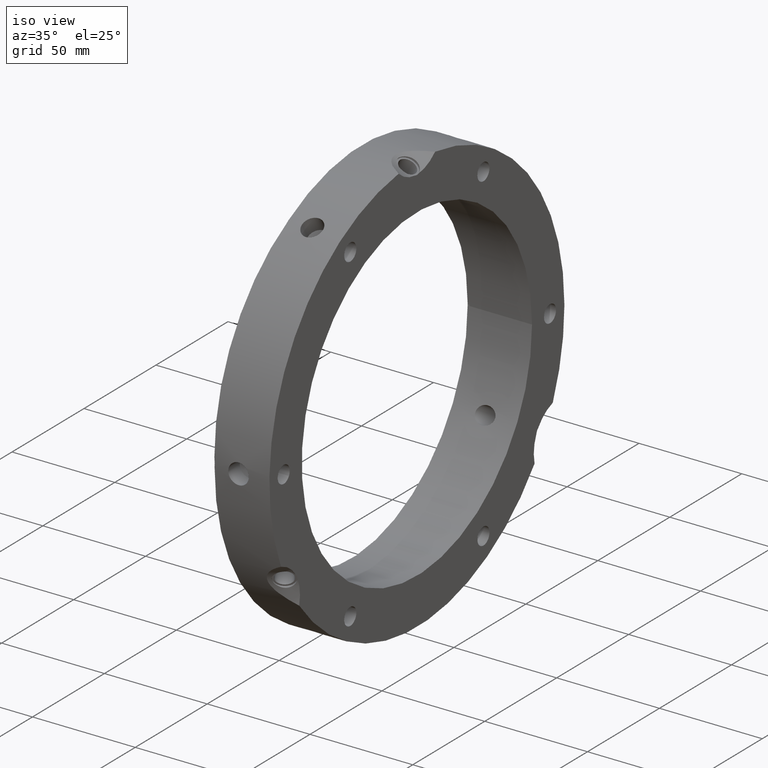
[diagram: clean part render]
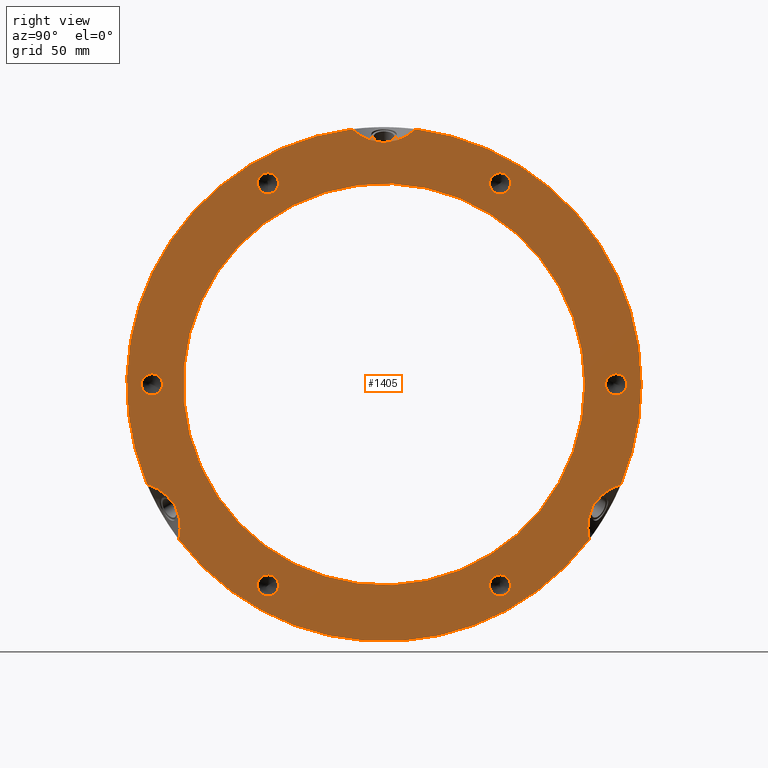
[diagram: tour spotlight — one face highlighted and labeled with its STEP entity id]
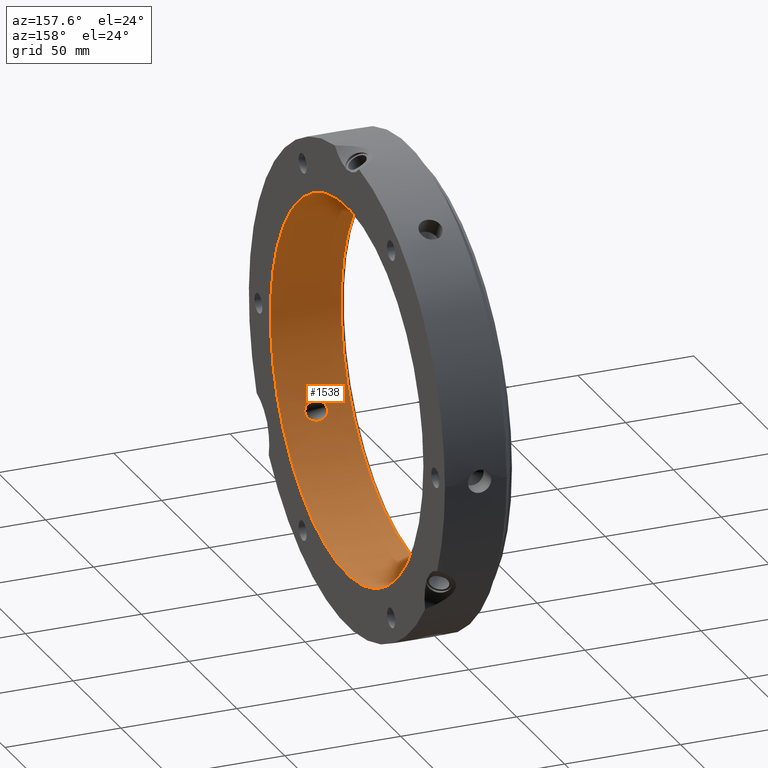
[diagram: tour spotlight — one face highlighted and labeled with its STEP entity id]
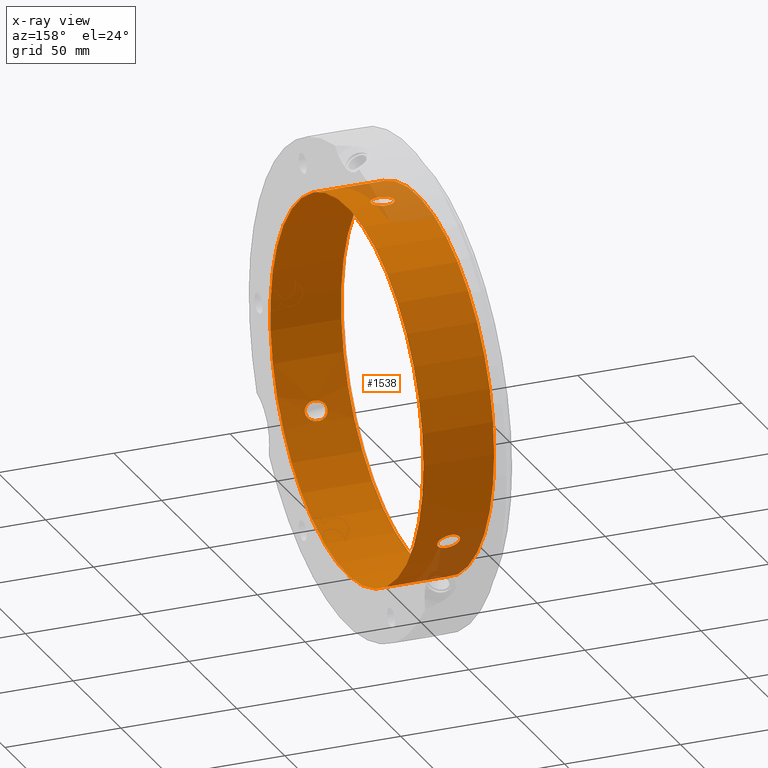
[diagram: x-ray of the same camera — body ghosted, this tour face saturated]
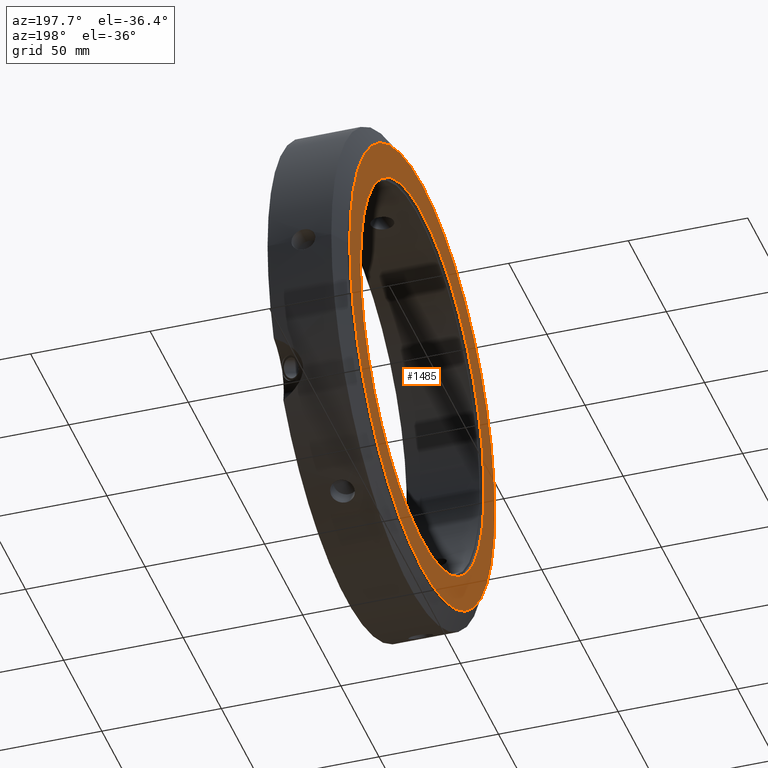
[diagram: tour spotlight — one face highlighted and labeled with its STEP entity id]
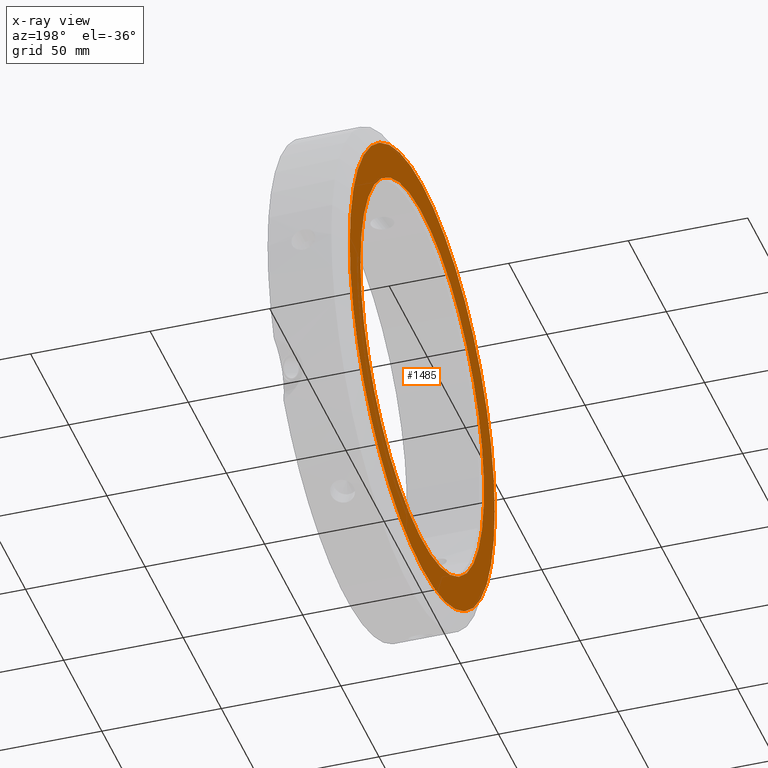
[diagram: x-ray of the same camera — body ghosted, this tour face saturated]
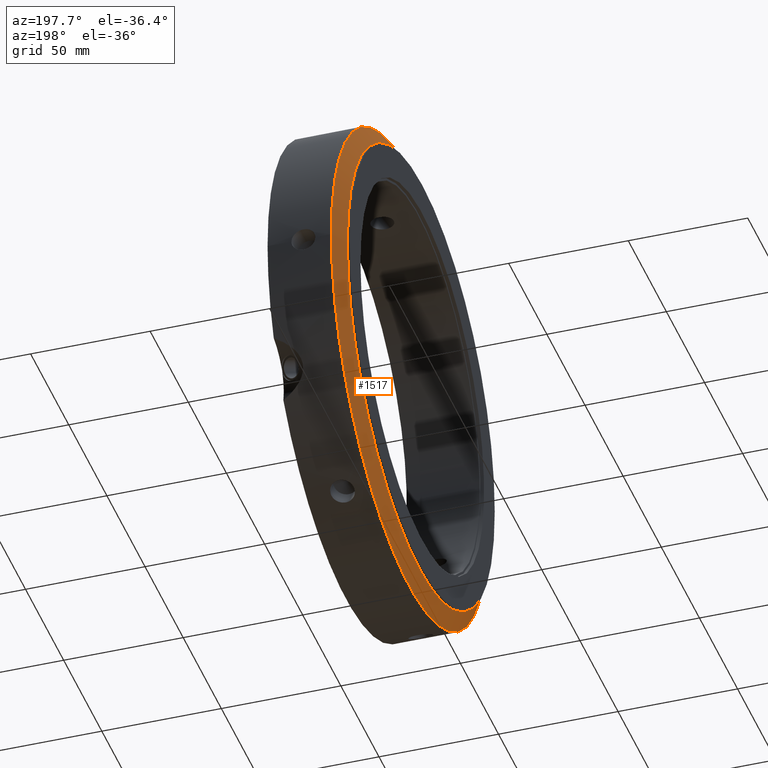
[diagram: tour spotlight — one face highlighted and labeled with its STEP entity id]
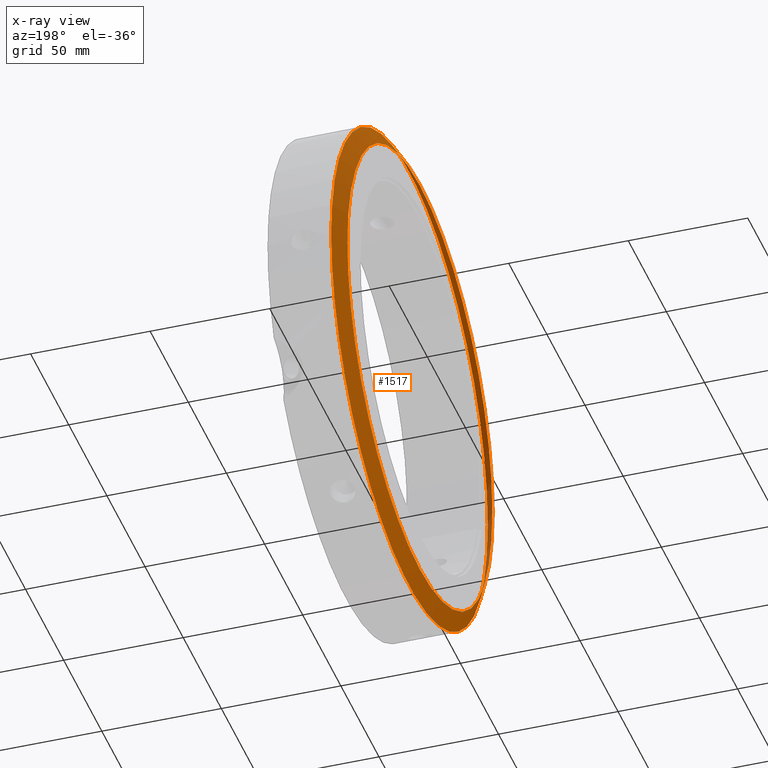
[diagram: x-ray of the same camera — body ghosted, this tour face saturated]
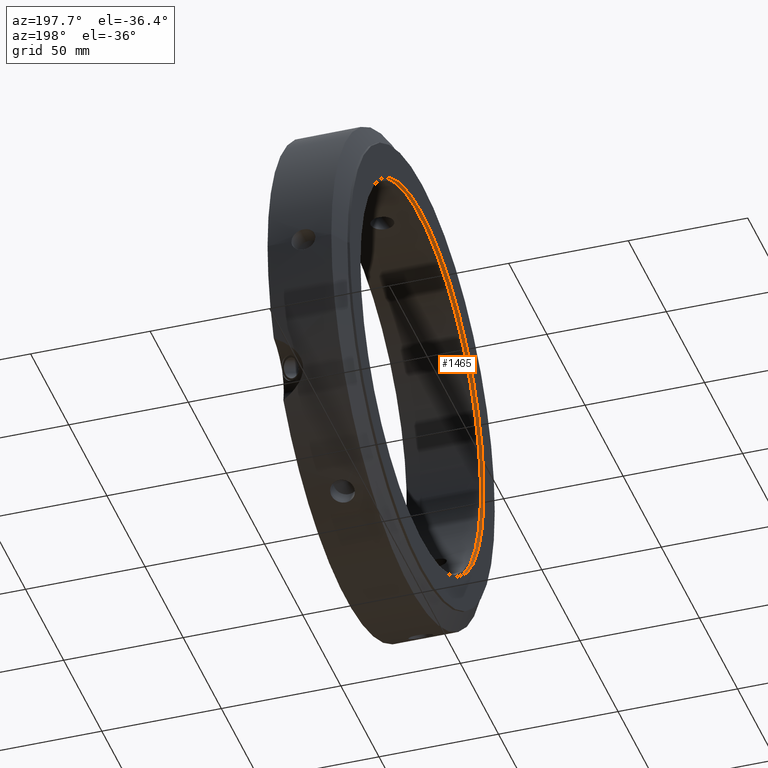
[diagram: tour spotlight — one face highlighted and labeled with its STEP entity id]
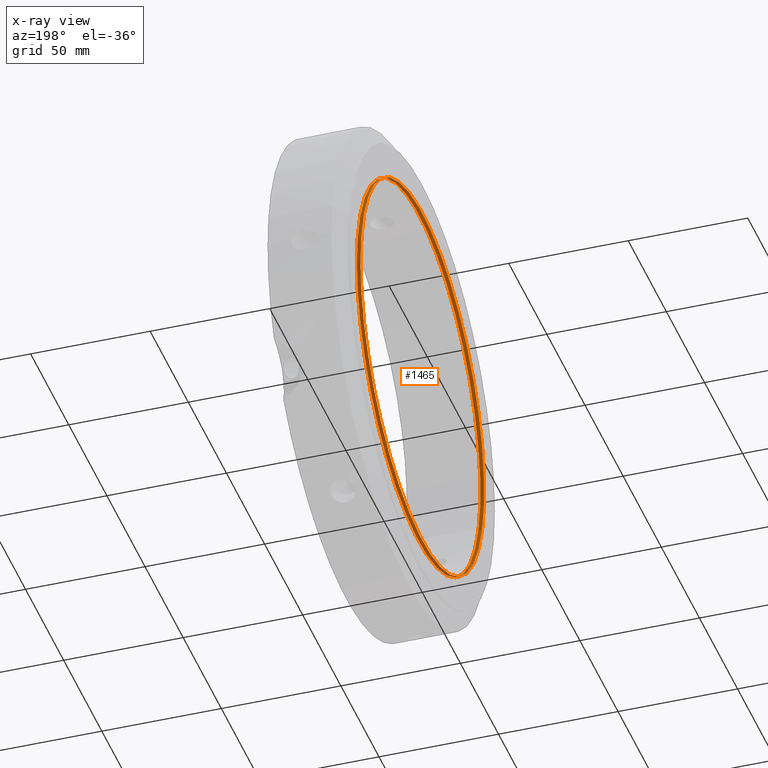
[diagram: x-ray of the same camera — body ghosted, this tour face saturated]
A machine part: a face-by-face anatomy tour. The part has 44 B-rep faces; the first image is the clean iso view, then the 5 largest visible faces are spotlighted one at a time (largest first), each with its STEP entity span.

Face 1 — right view, entity #1405. In plain terms, the highlighted planar face has unit normal (1, 0, 0).
Definition (entity closure, byte-faithful):
#165=CARTESIAN_POINT('',(31.999999999999986,42.612693304105385,78.007349850060578));
#166=VERTEX_POINT('',#165);
#167=CARTESIAN_POINT('',(31.999999999999986,46.250000000000028,80.107349850060544));
#168=DIRECTION('',(-1.0,0.0,0.0));
#169=DIRECTION('',(0.0,-0.866025403784439,-0.499999999999999));
#170=AXIS2_PLACEMENT_3D('',#167,#168,#169);
#171=CIRCLE('',#170,4.2);
#172=EDGE_CURVE('',#166,#166,#171,.T.);
#277=CARTESIAN_POINT('',(31.999999999999986,88.862693304105363,2.100000000000009));
#278=VERTEX_POINT('',#277);
#279=CARTESIAN_POINT('',(31.999999999999986,92.5,0.0));
#280=DIRECTION('',(-1.0,0.0,0.0));
#281=DIRECTION('',(0.0,-0.866025403784438,0.5));
#282=AXIS2_PLACEMENT_3D('',#279,#280,#281);
#283=CIRCLE('',#282,4.200000000000001);
#284=EDGE_CURVE('',#278,#278,#283,.T.);
#389=CARTESIAN_POINT('',(31.999999999999986,46.250000000000036,-75.907349850060555));
#390=VERTEX_POINT('',#389);
#391=CARTESIAN_POINT('',(31.999999999999986,46.250000000000036,-80.107349850060558));
#392=DIRECTION('',(-1.0,0.0,0.0));
#393=DIRECTION('',(0.0,0.0,1.0));
#394=AXIS2_PLACEMENT_3D('',#391,#392,#393);
#395=CIRCLE('',#394,4.200000000000001);
#396=EDGE_CURVE('',#390,#390,#395,.T.);
#501=CARTESIAN_POINT('',(31.999999999999986,-42.612693304105321,-78.007349850060578));
#502=VERTEX_POINT('',#501);
#503=CARTESIAN_POINT('',(31.999999999999986,-46.249999999999972,-80.107349850060587));
#504=DIRECTION('',(-1.0,0.0,0.0));
#505=DIRECTION('',(0.0,0.866025403784439,0.5));
#506=AXIS2_PLACEMENT_3D('',#503,#504,#505);
#507=CIRCLE('',#506,4.199999999999999);
#508=EDGE_CURVE('',#502,#502,#507,.T.);
#613=CARTESIAN_POINT('',(31.999999999999986,-88.862693304105349,-2.100000000000044));
#614=VERTEX_POINT('',#613);
#615=CARTESIAN_POINT('',(31.999999999999986,-92.5,-4.440892E-014));
#616=DIRECTION('',(-1.0,0.0,0.0));
#617=DIRECTION('',(0.0,0.866025403784439,-0.5));
#618=AXIS2_PLACEMENT_3D('',#615,#616,#617);
#619=CIRCLE('',#618,4.2);
#620=EDGE_CURVE('',#614,#614,#619,.T.);
#650=CARTESIAN_POINT('',(31.999999999999986,-46.250000000000043,75.907349850060541));
#651=VERTEX_POINT('',#650);
#652=CARTESIAN_POINT('',(31.999999999999986,-46.250000000000043,80.107349850060544));
#653=DIRECTION('',(-1.0,0.0,0.0));
#654=DIRECTION('',(0.0,0.0,-1.0));
#655=AXIS2_PLACEMENT_3D('',#652,#653,#654);
#656=CIRCLE('',#655,4.2);
#657=EDGE_CURVE('',#651,#651,#656,.T.);
#745=CARTESIAN_POINT('',(31.999999999961418,84.111952826831811,-47.374891842088829));
#746=VERTEX_POINT('',#745);
#747=CARTESIAN_POINT('',(31.999999999999979,94.41770309262445,-39.894201868354457));
#748=VERTEX_POINT('',#747);
#749=CARTESIAN_POINT('',(31.999999999999986,103.57145146519832,-59.797005383792587));
#750=DIRECTION('',(-1.0,0.0,0.0));
#751=DIRECTION('',(0.0,-0.866025403784438,0.5));
#752=AXIS2_PLACEMENT_3D('',#749,#750,#751);
#753=ELLIPSE('',#752,23.094010767585036,20.000000000000004);
#754=EDGE_CURVE('',#746,#748,#753,.T.);
#756=CARTESIAN_POINT('',(31.999999999961418,83.083836250204939,-49.155641988910375));
#757=VERTEX_POINT('',#756);
#796=CARTESIAN_POINT('',(31.999999999999986,81.758243828011729,-61.821028511012216));
#797=VERTEX_POINT('',#796);
#798=CARTESIAN_POINT('',(31.999999999999986,103.57145146519832,-59.797005383792587));
#799=DIRECTION('',(-1.0,0.0,0.0));
#800=DIRECTION('',(0.0,-0.866025403784438,0.5));
#801=AXIS2_PLACEMENT_3D('',#798,#799,#800);
#802=ELLIPSE('',#801,23.094010767585036,20.000000000000004);
#803=EDGE_CURVE('',#797,#757,#802,.T.);
#892=CARTESIAN_POINT('',(31.999999999999986,92.249999999999858,-53.260562332742978));
#893=DIRECTION('',(-1.0,0.0,0.0));
#894=DIRECTION('',(0.0,-0.866025403784438,0.5));
#895=AXIS2_PLACEMENT_3D('',#892,#893,#894);
#896=ELLIPSE('',#895,10.200000000000065,5.10000000000004);
#897=EDGE_CURVE('',#757,#746,#896,.T.);
#931=CARTESIAN_POINT('',(31.999999999961418,-83.083836250204968,-49.155641988910276));
#932=VERTEX_POINT('',#931);
#933=CARTESIAN_POINT('',(31.999999999999979,-81.758243828011729,-61.821028511012202));
#934=VERTEX_POINT('',#933);
#935=CARTESIAN_POINT('',(31.999999999999986,-103.57145146519835,-59.797005383792509));
#936=DIRECTION('',(-1.0,0.0,0.0));
#937=DIRECTION('',(0.0,0.866025403784439,0.5));
#938=AXIS2_PLACEMENT_3D('',#935,#936,#937);
#939=ELLIPSE('',#938,23.094010767585036,20.0);
#940=EDGE_CURVE('',#932,#934,#939,.T.);
#942=CARTESIAN_POINT('',(31.999999999961418,-84.111952826831839,-47.374891842088758));
#943=VERTEX_POINT('',#942);
#982=CARTESIAN_POINT('',(31.999999999999975,-94.417703092624507,-39.894201868354308));
#983=VERTEX_POINT('',#982);
#984=CARTESIAN_POINT('',(31.999999999999986,-103.57145146519835,-59.797005383792509));
#985=DIRECTION('',(-1.0,0.0,0.0));
#986=DIRECTION('',(0.0,0.866025403784439,0.5));
#987=AXIS2_PLACEMENT_3D('',#984,#985,#986);
#988=ELLIPSE('',#987,23.094010767585036,20.0);
#989=EDGE_CURVE('',#983,#943,#988,.T.);
#1078=CARTESIAN_POINT('',(31.999999999999986,-92.249999999999915,-53.260562332742893));
#1079=DIRECTION('',(-1.0,0.0,0.0));
#1080=DIRECTION('',(0.0,0.866025403784439,0.5));
#1081=AXIS2_PLACEMENT_3D('',#1078,#1079,#1080);
#1082=ELLIPSE('',#1081,10.200000000000063,5.100000000000039);
#1083=EDGE_CURVE('',#943,#932,#1082,.T.);
#1153=CARTESIAN_POINT('',(31.999999999999979,0.0,0.0));
#1154=DIRECTION('',(1.0,0.0,0.0));
#1155=DIRECTION('',(0.0,1.0,0.0));
#1156=AXIS2_PLACEMENT_3D('',#1153,#1154,#1155);
#1157=CIRCLE('',#1156,102.5);
#1158=EDGE_CURVE('',#934,#797,#1157,.T.);
#1161=CARTESIAN_POINT('',(31.999999999999975,-12.659459264612767,101.71523037936652));
#1162=VERTEX_POINT('',#1161);
#1163=CARTESIAN_POINT('',(31.999999999999979,0.0,0.0));
#1164=DIRECTION('',(1.0,0.0,0.0));
#1165=DIRECTION('',(0.0,1.0,0.0));
#1166=AXIS2_PLACEMENT_3D('',#1163,#1164,#1165);
#1167=CIRCLE('',#1166,102.5);
#1168=EDGE_CURVE('',#1162,#983,#1167,.T.);
#1170=CARTESIAN_POINT('',(31.999999999999975,12.659459264612767,101.71523037936652));
#1171=VERTEX_POINT('',#1170);
#1197=CARTESIAN_POINT('',(31.999999999999979,0.0,0.0));
#1198=DIRECTION('',(1.0,0.0,0.0));
#1199=DIRECTION('',(0.0,1.0,0.0));
#1200=AXIS2_PLACEMENT_3D('',#1197,#1198,#1199);
#1201=CIRCLE('',#1200,102.5);
#1202=EDGE_CURVE('',#748,#1171,#1201,.T.);
#1270=CARTESIAN_POINT('',(31.999999999999979,-1.028116576121158,96.530533830924483));
#1271=VERTEX_POINT('',#1270);
#1272=CARTESIAN_POINT('',(31.999999999999979,1.028116576121158,96.530533830924483));
#1273=VERTEX_POINT('',#1272);
#1312=CARTESIAN_POINT('',(31.999999999999986,0.0,106.52112466548581));
#1313=DIRECTION('',(-1.0,0.0,0.0));
#1314=DIRECTION('',(0.0,0.0,-1.0));
#1315=AXIS2_PLACEMENT_3D('',#1312,#1313,#1314);
#1316=ELLIPSE('',#1315,10.200000000000065,5.10000000000004);
#1317=EDGE_CURVE('',#1273,#1271,#1316,.T.);
#1345=CARTESIAN_POINT('',(31.999999999999986,91.25,0.0));
#1346=DIRECTION('',(1.0,0.0,0.0));
#1347=DIRECTION('',(0.0,0.0,-1.0));
#1348=AXIS2_PLACEMENT_3D('',#1345,#1346,#1347);
#1349=PLANE('',#1348);
#1350=ORIENTED_EDGE('',*,*,#754,.T.);
#1351=ORIENTED_EDGE('',*,*,#1202,.T.);
#1352=CARTESIAN_POINT('',(31.999999999999986,0.0,119.59401076758505));
#1353=DIRECTION('',(-1.0,0.0,0.0));
#1354=DIRECTION('',(0.0,0.0,-1.0));
#1355=AXIS2_PLACEMENT_3D('',#1352,#1353,#1354);
#1356=ELLIPSE('',#1355,23.09401076758504,20.000000000000004);
#1357=EDGE_CURVE('',#1171,#1273,#1356,.T.);
#1358=ORIENTED_EDGE('',*,*,#1357,.T.);
#1359=ORIENTED_EDGE('',*,*,#1317,.T.);
#1360=CARTESIAN_POINT('',(31.999999999999986,0.0,119.59401076758505));
#1361=DIRECTION('',(-1.0,0.0,0.0));
#1362=DIRECTION('',(0.0,0.0,-1.0));
#1363=AXIS2_PLACEMENT_3D('',#1360,#1361,#1362);
#1364=ELLIPSE('',#1363,23.09401076758504,20.000000000000004);
#1365=EDGE_CURVE('',#1271,#1162,#1364,.T.);
#1366=ORIENTED_EDGE('',*,*,#1365,.T.);
#1367=ORIENTED_EDGE('',*,*,#1168,.T.);
#1368=ORIENTED_EDGE('',*,*,#989,.T.);
#1369=ORIENTED_EDGE('',*,*,#1083,.T.);
#1370=ORIENTED_EDGE('',*,*,#940,.T.);
#1371=ORIENTED_EDGE('',*,*,#1158,.T.);
#1372=ORIENTED_EDGE('',*,*,#803,.T.);
#1373=ORIENTED_EDGE('',*,*,#897,.T.);
#1374=EDGE_LOOP('',(#1350,#1351,#1358,#1359,#1366,#1367,#1368,#1369,#1370,#1371,#1372,#1373));
#1375=FACE_OUTER_BOUND('',#1374,.T.);
#1376=ORIENTED_EDGE('',*,*,#172,.T.);
#1377=EDGE_LOOP('',(#1376));
#1378=FACE_BOUND('',#1377,.T.);
#1379=ORIENTED_EDGE('',*,*,#284,.T.);
#1380=EDGE_LOOP('',(#1379));
#1381=FACE_BOUND('',#1380,.T.);
#1382=ORIENTED_EDGE('',*,*,#396,.T.);
#1383=EDGE_LOOP('',(#1382));
#1384=FACE_BOUND('',#1383,.T.);
#1385=ORIENTED_EDGE('',*,*,#508,.T.);
#1386=EDGE_LOOP('',(#1385));
#1387=FACE_BOUND('',#1386,.T.);
#1388=ORIENTED_EDGE('',*,*,#620,.T.);
#1389=EDGE_LOOP('',(#1388));
#1390=FACE_BOUND('',#1389,.T.);
#1391=ORIENTED_EDGE('',*,*,#657,.T.);
#1392=EDGE_LOOP('',(#1391));
#1393=FACE_BOUND('',#1392,.T.);
#1394=CARTESIAN_POINT('',(31.999999999999986,80.0,0.0));
#1395=VERTEX_POINT('',#1394);
#1396=CARTESIAN_POINT('',(31.999999999999986,0.0,0.0));
#1397=DIRECTION('',(1.0,0.0,0.0));
#1398=DIRECTION('',(0.0,1.0,0.0));
#1399=AXIS2_PLACEMENT_3D('',#1396,#1397,#1398);
#1400=CIRCLE('',#1399,80.0);
#1401=EDGE_CURVE('',#1395,#1395,#1400,.T.);
#1402=ORIENTED_EDGE('',*,*,#1401,.F.);
#1403=EDGE_LOOP('',(#1402));
#1404=FACE_BOUND('',#1403,.T.);
#1405=ADVANCED_FACE('',(#1375,#1378,#1381,#1384,#1387,#1390,#1393,#1404),#1349,.T.);

Face 2 — auxiliary view, entity #1538. An x-ray twin of the same camera follows (body ghosted, this face saturated) — the face is partly hidden behind the body. In plain terms, the highlighted cylindrical surface (bore or boss wall) has radius 80 mm, axis along (1, 0, 0).
Definition (entity closure, byte-faithful):
#834=CARTESIAN_POINT('',(16.624688457845824,71.281032686768683,-36.318237555088153));
#835=VERTEX_POINT('',#834);
#836=CARTESIAN_POINT('',(16.624688457845824,71.281032686768683,-36.318237555088153));
#837=CARTESIAN_POINT('',(17.243360965910274,71.281032686768683,-36.318237555088153));
#838=CARTESIAN_POINT('',(17.908223794642133,71.231998393175573,-36.415019375291578));
#839=CARTESIAN_POINT('',(19.147730878069421,71.024802212132428,-36.817505376635673));
#840=CARTESIAN_POINT('',(19.722375564253131,70.866411894817603,-37.123090594106955));
#841=CARTESIAN_POINT('',(20.569407454521365,70.507463726526339,-37.799745585772683));
#842=CARTESIAN_POINT('',(20.922376752647228,70.295614114756134,-38.193917482019273));
#843=CARTESIAN_POINT('',(21.400107951823909,69.813991647259414,-39.067317126370099));
#844=CARTESIAN_POINT('',(21.523907389902401,69.54369709696995,-39.546783281867818));
#845=CARTESIAN_POINT('',(21.523907389902401,69.02036750854019,-40.453216718132268));
#846=CARTESIAN_POINT('',(21.400107951823912,68.740284912769042,-40.927031742936286));
#847=CARTESIAN_POINT('',(20.922376752647232,68.224709866853289,-41.780828856997196));
#848=CARTESIAN_POINT('',(20.569407454521365,67.989271797130939,-42.161381950695372));
#849=CARTESIAN_POINT('',(19.722375564253131,67.582745468896505,-42.81056767891036));
#850=CARTESIAN_POINT('',(19.147730878069417,67.397296066202813,-43.100530326154129));
#851=CARTESIAN_POINT('',(17.908223794642133,67.152331054892784,-43.481210483176639));
#852=CARTESIAN_POINT('',(17.243360965910277,67.093032686768666,-43.572066337186612));
#853=CARTESIAN_POINT('',(16.018693329207888,67.093032686768666,-43.572066337186612));
#854=CARTESIAN_POINT('',(15.366740980056511,67.150118559278894,-43.484609644367119));
#855=CARTESIAN_POINT('',(14.155243479130093,67.391426132749658,-43.109690121165272));
#856=CARTESIAN_POINT('',(13.595836631545847,67.57563316611197,-42.821771092296558));
#857=CARTESIAN_POINT('',(12.770006957541868,67.983296160651193,-42.171052000097461));
#858=CARTESIAN_POINT('',(12.427836800347816,68.221479238673311,-41.786143642201466));
#859=CARTESIAN_POINT('',(11.968717883815412,68.740528920749526,-40.926662627070897));
#860=CARTESIAN_POINT('',(11.852135680437783,69.021199417263404,-40.451775809956402));
#861=CARTESIAN_POINT('',(11.852135680437783,69.542865188246736,-39.54822419004369));
#862=CARTESIAN_POINT('',(11.96871788381541,69.813793987533302,-39.067713001412635));
#863=CARTESIAN_POINT('',(12.427836800347816,70.298601539668709,-38.188462283343092));
#864=CARTESIAN_POINT('',(12.770006957541874,70.512850416724518,-37.78973550807639));
#865=CARTESIAN_POINT('',(13.595836631545852,70.872558184026872,-37.11132945252303));
#866=CARTESIAN_POINT('',(14.155243479130093,71.029799860578962,-36.807841967641153));
#867=CARTESIAN_POINT('',(15.366740980056509,71.233835905311125,-36.411403717288962));
#868=CARTESIAN_POINT('',(16.018693329207885,71.281032686768668,-36.318237555088153));
#869=CARTESIAN_POINT('',(16.624688457845821,71.281032686768668,-36.318237555088153));
#870=B_SPLINE_CURVE_WITH_KNOTS('',3,(#836,#837,#838,#839,#840,#841,#842,#843,#844,#845,#846,#847,#848,#849,#850,#851,#852,#853,#854,#855,#856,#857,#858,#859,#860,#861,#862,#863,#864,#865,#866,#867,#868,#869),.UNSPECIFIED.,.T.,.U.,(4,2,2,2,2,2,2,2,2,2,2,2,2,2,2,2,4),(0.0,0.185601752419335,0.371203504838671,0.528202381367599,0.685201257896527,0.842200134425456,0.999199010954385,1.18480076337372,1.370402515793055,1.552201054384436,1.733999592975818,1.890499324270815,2.046999055565812,2.203498786860809,2.359998518155806,2.541797056747187,2.723595595338569),.UNSPECIFIED.);
#871=EDGE_CURVE('',#835,#835,#870,.T.);
#1020=CARTESIAN_POINT('',(16.624688457845824,-67.093032686768709,-43.572066337186548));
#1021=VERTEX_POINT('',#1020);
#1022=CARTESIAN_POINT('',(16.624688457845824,-67.093032686768709,-43.572066337186548));
#1023=CARTESIAN_POINT('',(17.243360965910274,-67.093032686768709,-43.572066337186548));
#1024=CARTESIAN_POINT('',(17.908223794642137,-67.152331054892827,-43.481210483176589));
#1025=CARTESIAN_POINT('',(19.147730878069421,-67.397296066202856,-43.100530326154079));
#1026=CARTESIAN_POINT('',(19.722375564253131,-67.582745468896547,-42.810567678910303));
#1027=CARTESIAN_POINT('',(20.569407454521365,-67.989271797130982,-42.161381950695315));
#1028=CARTESIAN_POINT('',(20.922376752647224,-68.224709866853317,-41.780828856997147));
#1029=CARTESIAN_POINT('',(21.400107951823905,-68.740284912769084,-40.927031742936236));
#1030=CARTESIAN_POINT('',(21.523907389902401,-69.020367508540218,-40.453216718132211));
#1031=CARTESIAN_POINT('',(21.523907389902401,-69.543697096969993,-39.546783281867754));
#1032=CARTESIAN_POINT('',(21.400107951823909,-69.813991647259456,-39.067317126370035));
#1033=CARTESIAN_POINT('',(20.922376752647228,-70.295614114756162,-38.193917482019209));
#1034=CARTESIAN_POINT('',(20.569407454521375,-70.507463726526368,-37.799745585772619));
#1035=CARTESIAN_POINT('',(19.722375564253134,-70.866411894817631,-37.123090594106891));
#1036=CARTESIAN_POINT('',(19.147730878069432,-71.024802212132457,-36.817505376635609));
#1037=CARTESIAN_POINT('',(17.908223794642144,-71.231998393175601,-36.415019375291521));
#1038=CARTESIAN_POINT('',(17.243360965910281,-71.281032686768697,-36.318237555088103));
#1039=CARTESIAN_POINT('',(16.018693329207888,-71.281032686768697,-36.318237555088103));
#1040=CARTESIAN_POINT('',(15.366740980056512,-71.233835905311167,-36.411403717288891));
#1041=CARTESIAN_POINT('',(14.155243479130096,-71.029799860579004,-36.807841967641082));
#1042=CARTESIAN_POINT('',(13.595836631545847,-70.8725581840269,-37.111329452522966));
#1043=CARTESIAN_POINT('',(12.770006957541868,-70.512850416724561,-37.789735508076333));
#1044=CARTESIAN_POINT('',(12.427836800347823,-70.298601539668738,-38.188462283343029));
#1045=CARTESIAN_POINT('',(11.968717883815415,-69.81379398753333,-39.067713001412571));
#1046=CARTESIAN_POINT('',(11.852135680437787,-69.542865188246765,-39.548224190043626));
#1047=CARTESIAN_POINT('',(11.852135680437787,-69.021199417263432,-40.451775809956338));
#1048=CARTESIAN_POINT('',(11.968717883815414,-68.740528920749568,-40.92666262707084));
#1049=CARTESIAN_POINT('',(12.427836800347817,-68.221479238673354,-41.786143642201417));
#1050=CARTESIAN_POINT('',(12.770006957541877,-67.98329616065125,-42.171052000097397));
#1051=CARTESIAN_POINT('',(13.595836631545852,-67.575633166112027,-42.821771092296501));
#1052=CARTESIAN_POINT('',(14.155243479130098,-67.3914261327497,-43.109690121165222));
#1053=CARTESIAN_POINT('',(15.366740980056516,-67.150118559278937,-43.484609644367069));
#1054=CARTESIAN_POINT('',(16.018693329207888,-67.093032686768709,-43.572066337186548));
#1055=CARTESIAN_POINT('',(16.624688457845828,-67.093032686768709,-43.572066337186548));
#1056=B_SPLINE_CURVE_WITH_KNOTS('',3,(#1022,#1023,#1024,#1025,#1026,#1027,#1028,#1029,#1030,#1031,#1032,#1033,#1034,#1035,#1036,#1037,#1038,#1039,#1040,#1041,#1042,#1043,#1044,#1045,#1046,#1047,#1048,#1049,#1050,#1051,#1052,#1053,#1054,#1055),.UNSPECIFIED.,.T.,.U.,(4,2,2,2,2,2,2,2,2,2,2,2,2,2,2,2,4),(0.0,0.185601752419335,0.371203504838669,0.528202381367598,0.685201257896527,0.842200134425455,0.999199010954383,1.184800763373718,1.370402515793054,1.552201054384435,1.733999592975817,1.890499324270814,2.046999055565811,2.203498786860808,2.359998518155805,2.541797056747186,2.723595595338567),.UNSPECIFIED.);
#1057=EDGE_CURVE('',#1021,#1021,#1056,.T.);
#1212=CARTESIAN_POINT('',(16.624688457845828,-4.188000000000001,79.890303892274687));
#1213=VERTEX_POINT('',#1212);
#1214=CARTESIAN_POINT('',(16.624688457845828,-4.188000000000001,79.890303892274687));
#1215=CARTESIAN_POINT('',(17.243360965910277,-4.188000000000001,79.890303892274687));
#1216=CARTESIAN_POINT('',(17.908223794642137,-4.079667338282784,79.896229858468146));
#1217=CARTESIAN_POINT('',(19.147730878069421,-3.627506145929622,79.918035702789723));
#1218=CARTESIAN_POINT('',(19.722375564253124,-3.283666425921074,79.933658273017215));
#1219=CARTESIAN_POINT('',(20.569407454521361,-2.518191929395378,79.961127536467956));
#1220=CARTESIAN_POINT('',(20.922376752647228,-2.070904247902846,79.974746339016377));
#1221=CARTESIAN_POINT('',(21.400107951823909,-1.073706734490376,79.994348869306307));
#1222=CARTESIAN_POINT('',(21.523907389902405,-0.523329588429763,80.0));
#1223=CARTESIAN_POINT('',(21.523907389902405,0.523329588429761,80.0));
#1224=CARTESIAN_POINT('',(21.400107951823909,1.073706734490372,79.994348869306307));
#1225=CARTESIAN_POINT('',(20.922376752647228,2.07090424790284,79.974746339016392));
#1226=CARTESIAN_POINT('',(20.569407454521365,2.518191929395376,79.961127536467956));
#1227=CARTESIAN_POINT('',(19.722375564253131,3.283666425921074,79.933658273017215));
#1228=CARTESIAN_POINT('',(19.147730878069421,3.627506145929619,79.918035702789723));
#1229=CARTESIAN_POINT('',(17.908223794642137,4.079667338282783,79.896229858468146));
#1230=CARTESIAN_POINT('',(17.243360965910277,4.188,79.890303892274687));
#1231=CARTESIAN_POINT('',(16.018693329207892,4.188,79.890303892274687));
#1232=CARTESIAN_POINT('',(15.366740980056512,4.083717346032232,79.896013361655989));
#1233=CARTESIAN_POINT('',(14.155243479130098,3.6383737278293,79.917532088806325));
#1234=CARTESIAN_POINT('',(13.595836631545858,3.296925017914893,79.93310054481951));
#1235=CARTESIAN_POINT('',(12.770006957541877,2.529554256073308,79.960787508173766));
#1236=CARTESIAN_POINT('',(12.427836800347825,2.077122300995385,79.974605925544495));
#1237=CARTESIAN_POINT('',(11.968717883815421,1.073265066783751,79.994375628483454));
#1238=CARTESIAN_POINT('',(11.852135680437785,0.521665770983325,80.0));
#1239=CARTESIAN_POINT('',(11.852135680437783,-0.521665770983322,80.0));
#1240=CARTESIAN_POINT('',(11.968717883815414,-1.073265066783748,79.994375628483454));
#1241=CARTESIAN_POINT('',(12.427836800347817,-2.077122300995385,79.974605925544495));
#1242=CARTESIAN_POINT('',(12.770006957541877,-2.529554256073309,79.960787508173766));
#1243=CARTESIAN_POINT('',(13.595836631545858,-3.296925017914896,79.93310054481951));
#1244=CARTESIAN_POINT('',(14.155243479130103,-3.638373727829301,79.917532088806325));
#1245=CARTESIAN_POINT('',(15.36674098005652,-4.083717346032231,79.896013361655989));
#1246=CARTESIAN_POINT('',(16.018693329207895,-4.188,79.890303892274687));
#1247=CARTESIAN_POINT('',(16.624688457845831,-4.188,79.890303892274687));
#1248=B_SPLINE_CURVE_WITH_KNOTS('',3,(#1214,#1215,#1216,#1217,#1218,#1219,#1220,#1221,#1222,#1223,#1224,#1225,#1226,#1227,#1228,#1229,#1230,#1231,#1232,#1233,#1234,#1235,#1236,#1237,#1238,#1239,#1240,#1241,#1242,#1243,#1244,#1245,#1246,#1247),.UNSPECIFIED.,.T.,.U.,(4,2,2,2,2,2,2,2,2,2,2,2,2,2,2,2,4),(0.0,0.185601752419334,0.371203504838669,0.528202381367598,0.685201257896526,0.842200134425455,0.999199010954383,1.184800763373718,1.370402515793053,1.552201054384434,1.733999592975815,1.890499324270812,2.046999055565809,2.203498786860807,2.359998518155804,2.541797056747186,2.723595595338566),.UNSPECIFIED.);
#1249=EDGE_CURVE('',#1213,#1213,#1248,.T.);
#1394=CARTESIAN_POINT('',(31.999999999999986,80.0,0.0));
#1395=VERTEX_POINT('',#1394);
#1396=CARTESIAN_POINT('',(31.999999999999986,0.0,0.0));
#1397=DIRECTION('',(1.0,0.0,0.0));
#1398=DIRECTION('',(0.0,1.0,0.0));
#1399=AXIS2_PLACEMENT_3D('',#1396,#1397,#1398);
#1400=CIRCLE('',#1399,80.0);
#1401=EDGE_CURVE('',#1395,#1395,#1400,.T.);
#1434=CARTESIAN_POINT('',(1.499999999999977,80.0,0.0));
#1435=VERTEX_POINT('',#1434);
#1436=CARTESIAN_POINT('',(1.499999999999977,0.0,0.0));
#1437=DIRECTION('',(1.0,0.0,0.0));
#1438=DIRECTION('',(0.0,1.0,0.0));
#1439=AXIS2_PLACEMENT_3D('',#1436,#1437,#1438);
#1440=CIRCLE('',#1439,80.0);
#1441=EDGE_CURVE('',#1435,#1435,#1440,.T.);
#1518=CARTESIAN_POINT('',(16.749999999999979,0.0,0.0));
#1519=DIRECTION('',(1.0,0.0,0.0));
#1520=DIRECTION('',(0.0,1.0,0.0));
#1521=AXIS2_PLACEMENT_3D('',#1518,#1519,#1520);
#1522=CYLINDRICAL_SURFACE('',#1521,80.0);
#1523=ORIENTED_EDGE('',*,*,#1441,.F.);
#1524=EDGE_LOOP('',(#1523));
#1525=FACE_OUTER_BOUND('',#1524,.T.);
#1526=ORIENTED_EDGE('',*,*,#871,.T.);
#1527=EDGE_LOOP('',(#1526));
#1528=FACE_BOUND('',#1527,.T.);
#1529=ORIENTED_EDGE('',*,*,#1057,.T.);
#1530=EDGE_LOOP('',(#1529));
#1531=FACE_BOUND('',#1530,.T.);
#1532=ORIENTED_EDGE('',*,*,#1249,.T.);
#1533=EDGE_LOOP('',(#1532));
#1534=FACE_BOUND('',#1533,.T.);
#1535=ORIENTED_EDGE('',*,*,#1401,.T.);
#1536=EDGE_LOOP('',(#1535));
#1537=FACE_BOUND('',#1536,.T.);
#1538=ADVANCED_FACE('',(#1525,#1528,#1531,#1534,#1537),#1522,.F.);

Face 3 — auxiliary view, entity #1485. An x-ray twin of the same camera follows (body ghosted, this face saturated) — the face is partly hidden behind the body. In plain terms, the highlighted planar face has unit normal (-1, 0, 0).
Definition (entity closure, byte-faithful):
#1451=CARTESIAN_POINT('',(-2.386980E-014,81.0,0.0));
#1452=VERTEX_POINT('',#1451);
#1453=CARTESIAN_POINT('',(-2.386980E-014,0.0,0.0));
#1454=DIRECTION('',(1.0,0.0,0.0));
#1455=DIRECTION('',(0.0,1.0,0.0));
#1456=AXIS2_PLACEMENT_3D('',#1453,#1454,#1455);
#1457=CIRCLE('',#1456,81.0);
#1458=EDGE_CURVE('',#1452,#1452,#1457,.T.);
#1466=CARTESIAN_POINT('',(-2.525757E-014,88.0,0.0));
#1467=DIRECTION('',(-1.0,0.0,0.0));
#1468=DIRECTION('',(0.0,0.0,1.0));
#1469=AXIS2_PLACEMENT_3D('',#1466,#1467,#1468);
#1470=PLANE('',#1469);
#1471=CARTESIAN_POINT('',(-2.664535E-014,95.0,0.0));
#1472=VERTEX_POINT('',#1471);
#1473=CARTESIAN_POINT('',(-2.664535E-014,0.0,0.0));
#1474=DIRECTION('',(1.0,0.0,0.0));
#1475=DIRECTION('',(0.0,1.0,0.0));
#1476=AXIS2_PLACEMENT_3D('',#1473,#1474,#1475);
#1477=CIRCLE('',#1476,95.0);
#1478=EDGE_CURVE('',#1472,#1472,#1477,.T.);
#1479=ORIENTED_EDGE('',*,*,#1478,.F.);
#1480=EDGE_LOOP('',(#1479));
#1481=FACE_OUTER_BOUND('',#1480,.T.);
#1482=ORIENTED_EDGE('',*,*,#1458,.T.);
#1483=EDGE_LOOP('',(#1482));
#1484=FACE_BOUND('',#1483,.T.);
#1485=ADVANCED_FACE('',(#1481,#1484),#1470,.T.);

Face 4 — auxiliary view, entity #1517. An x-ray twin of the same camera follows (body ghosted, this face saturated) — the face is partly hidden behind the body. In plain terms, the highlighted conical surface has half-angle 60 deg.
Definition (entity closure, byte-faithful):
#1117=CARTESIAN_POINT('',(5.330127018922158,102.5,0.0));
#1118=VERTEX_POINT('',#1117);
#1119=CARTESIAN_POINT('',(5.330127018922158,0.0,0.0));
#1120=DIRECTION('',(1.0,0.0,0.0));
#1121=DIRECTION('',(0.0,1.0,0.0));
#1122=AXIS2_PLACEMENT_3D('',#1119,#1120,#1121);
#1123=CIRCLE('',#1122,102.5);
#1124=EDGE_CURVE('',#1118,#1118,#1123,.T.);
#1491=CARTESIAN_POINT('',(0.999999999999973,95.0,0.0));
#1492=VERTEX_POINT('',#1491);
#1493=CARTESIAN_POINT('',(0.999999999999973,0.0,0.0));
#1494=DIRECTION('',(1.0,0.0,0.0));
#1495=DIRECTION('',(0.0,1.0,0.0));
#1496=AXIS2_PLACEMENT_3D('',#1493,#1494,#1495);
#1497=CIRCLE('',#1496,95.0);
#1498=EDGE_CURVE('',#1492,#1492,#1497,.T.);
#1506=CARTESIAN_POINT('',(3.165063509461066,0.0,0.0));
#1507=DIRECTION('',(1.0,0.0,0.0));
#1508=DIRECTION('',(0.0,1.0,0.0));
#1509=AXIS2_PLACEMENT_3D('',#1506,#1507,#1508);
#1510=CONICAL_SURFACE('',#1509,98.75,60.000000000000043);
#1511=ORIENTED_EDGE('',*,*,#1124,.F.);
#1512=EDGE_LOOP('',(#1511));
#1513=FACE_OUTER_BOUND('',#1512,.T.);
#1514=ORIENTED_EDGE('',*,*,#1498,.T.);
#1515=EDGE_LOOP('',(#1514));
#1516=FACE_BOUND('',#1515,.T.);
#1517=ADVANCED_FACE('',(#1513,#1516),#1510,.T.);

Face 5 — auxiliary view, entity #1465. An x-ray twin of the same camera follows (body ghosted, this face saturated) — the face is partly hidden behind the body. In plain terms, the highlighted cylindrical surface (bore or boss wall) has radius 81 mm, axis along (1, 0, 0).
Definition (entity closure, byte-faithful):
#1423=CARTESIAN_POINT('',(1.499999999999977,81.0,0.0));
#1424=VERTEX_POINT('',#1423);
#1425=CARTESIAN_POINT('',(1.499999999999977,0.0,0.0));
#1426=DIRECTION('',(1.0,0.0,0.0));
#1427=DIRECTION('',(0.0,1.0,0.0));
#1428=AXIS2_PLACEMENT_3D('',#1425,#1426,#1427);
#1429=CIRCLE('',#1428,81.0);
#1430=EDGE_CURVE('',#1424,#1424,#1429,.T.);
#1446=CARTESIAN_POINT('',(0.749999999999976,0.0,0.0));
#1447=DIRECTION('',(1.0,0.0,0.0));
#1448=DIRECTION('',(0.0,1.0,0.0));
#1449=AXIS2_PLACEMENT_3D('',#1446,#1447,#1448);
#1450=CYLINDRICAL_SURFACE('',#1449,81.0);
#1451=CARTESIAN_POINT('',(-2.386980E-014,81.0,0.0));
#1452=VERTEX_POINT('',#1451);
#1453=CARTESIAN_POINT('',(-2.386980E-014,0.0,0.0));
#1454=DIRECTION('',(1.0,0.0,0.0));
#1455=DIRECTION('',(0.0,1.0,0.0));
#1456=AXIS2_PLACEMENT_3D('',#1453,#1454,#1455);
#1457=CIRCLE('',#1456,81.0);
#1458=EDGE_CURVE('',#1452,#1452,#1457,.T.);
#1459=ORIENTED_EDGE('',*,*,#1458,.F.);
#1460=EDGE_LOOP('',(#1459));
#1461=FACE_OUTER_BOUND('',#1460,.T.);
#1462=ORIENTED_EDGE('',*,*,#1430,.T.);
#1463=EDGE_LOOP('',(#1462));
#1464=FACE_BOUND('',#1463,.T.);
#1465=ADVANCED_FACE('',(#1461,#1464),#1450,.F.);